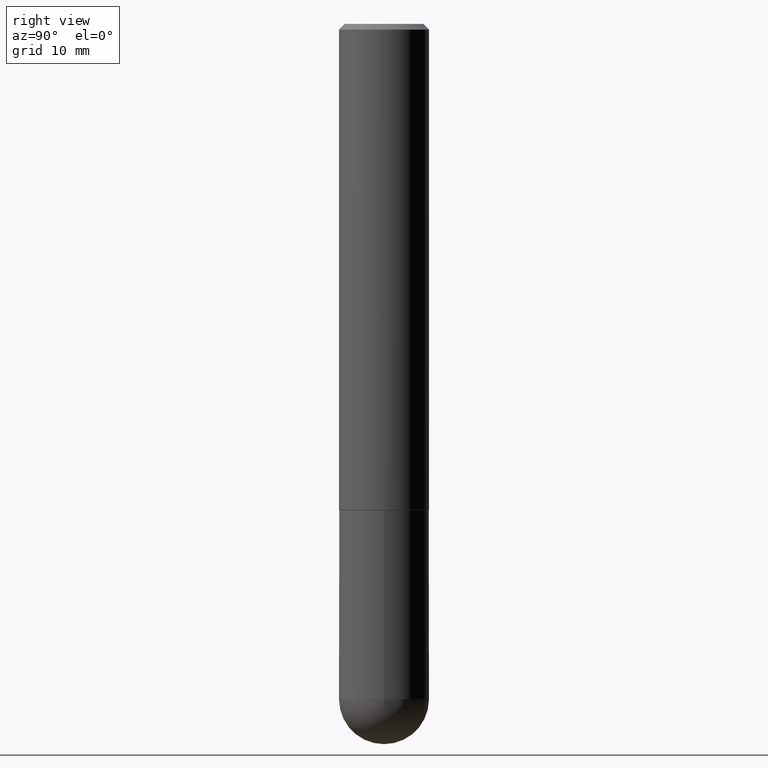
[diagram: clean part render]
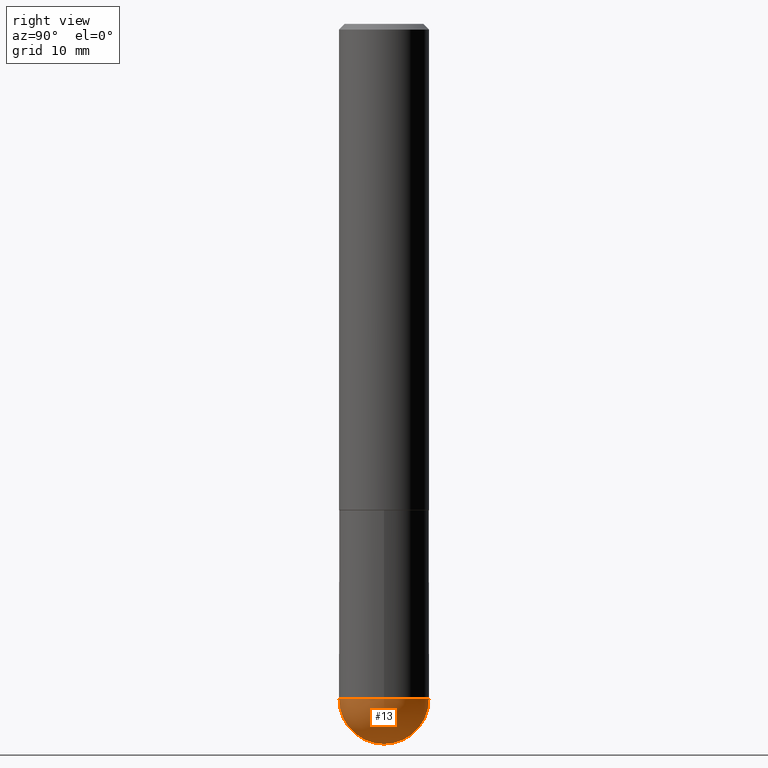
[diagram: same view with one face highlighted and labeled with its STEP entity id]
A machine part, right view. The second image highlights one B-rep face of the part: STEP entity #13.
In plain terms, the highlighted spherical surface has radius 3.9688 mm.
Its self-contained STEP definition (entity closure, byte-faithful):
#13 = ADVANCED_FACE ( 'NONE', ( #137 ), #76, .T. ) ;
#21 = DIRECTION ( 'NONE',  ( 6.982962677686265922E-15, 1.000000000000000000, 0.000000000000000000 ) ) ;
#24 = CIRCLE ( 'NONE', #179, 0.1562500000000002498 ) ;
#28 = CARTESIAN_POINT ( 'NONE',  ( 5.400447736582527652E-29, -8.657341756053672891E-15, -2.343750000000000000 ) ) ;
#31 = DIRECTION ( 'NONE',  ( 1.000000000000000000, -6.982962677686265922E-15, 4.883557194083112340E-29 ) ) ;
#38 = CIRCLE ( 'NONE', #66, 0.1562500000000002498 ) ;
#47 = ORIENTED_EDGE ( 'NONE', *, *, #202, .T. ) ;
#53 = CIRCLE ( 'NONE', #218, 0.1562500000000000000 ) ;
#66 = AXIS2_PLACEMENT_3D ( 'NONE', #28, #31, #21 ) ;
#69 = DIRECTION ( 'NONE',  ( -1.000000000000000000, 7.105427357601001070E-15, -4.926315508542082329E-29 ) ) ;
#73 = DIRECTION ( 'NONE',  ( -1.000000000000000000, 6.982962677686265922E-15, -4.883557194083112340E-29 ) ) ;
#74 = VERTEX_POINT ( 'NONE', #146 ) ;
#76 = SPHERICAL_SURFACE ( 'NONE', #295, 0.1562500000000002498 ) ;
#110 = VERTEX_POINT ( 'NONE', #215 ) ;
#136 = ORIENTED_EDGE ( 'NONE', *, *, #315, .F. ) ;
#137 = FACE_OUTER_BOUND ( 'NONE', #233, .T. ) ;
#146 = CARTESIAN_POINT ( 'NONE',  ( 0.1562500000000000000, -8.129477862328905246E-15, -2.343750000000000000 ) ) ;
#167 = ORIENTED_EDGE ( 'NONE', *, *, #331, .F. ) ;
#179 = AXIS2_PLACEMENT_3D ( 'NONE', #247, #69, #190 ) ;
#190 = DIRECTION ( 'NONE',  ( -7.105427357601000281E-15, -1.000000000000000000, 0.000000000000000000 ) ) ;
#191 = DIRECTION ( 'NONE',  ( 1.000000000000000000, -6.982962677686262766E-15, 0.000000000000000000 ) ) ;
#197 = DIRECTION ( 'NONE',  ( 6.982962677686265922E-15, 1.000000000000000000, -3.496765431890251398E-15 ) ) ;
#202 = EDGE_CURVE ( 'NONE', #324, #110, #38, .T. ) ;
#215 = CARTESIAN_POINT ( 'NONE',  ( 1.091087918388535577E-15, 0.1562499999999916733, -2.343750000000000444 ) ) ;
#218 = AXIS2_PLACEMENT_3D ( 'NONE', #317, #355, #280 ) ;
#224 = ORIENTED_EDGE ( 'NONE', *, *, #294, .F. ) ;
#233 = EDGE_LOOP ( 'NONE', ( #136, #47, #167, #224 ) ) ;
#247 = CARTESIAN_POINT ( 'NONE',  ( 5.400447736582527652E-29, -8.657341756053672891E-15, -2.343750000000000000 ) ) ;
#250 = CARTESIAN_POINT ( 'NONE',  ( 5.789233224183170584E-29, -9.193318162129576161E-15, -2.500000000000000000 ) ) ;
#264 = CIRCLE ( 'NONE', #289, 0.1562500000000000000 ) ;
#280 = DIRECTION ( 'NONE',  ( 1.000000000000000000, -6.982962677686262766E-15, 0.000000000000000000 ) ) ;
#285 = CARTESIAN_POINT ( 'NONE',  ( -1.110223024625101517E-15, -0.1562500000000085487, -2.343749999999999556 ) ) ;
#288 = CARTESIAN_POINT ( 'NONE',  ( 5.400447736582527652E-29, -8.657341756053672891E-15, -2.343750000000000000 ) ) ;
#289 = AXIS2_PLACEMENT_3D ( 'NONE', #322, #325, #191 ) ;
#294 = EDGE_CURVE ( 'NONE', #337, #74, #53, .T. ) ;
#295 = AXIS2_PLACEMENT_3D ( 'NONE', #288, #73, #197 ) ;
#315 = EDGE_CURVE ( 'NONE', #324, #337, #24, .T. ) ;
#317 = CARTESIAN_POINT ( 'NONE',  ( 5.731567514496413899E-29, -8.183159387913622595E-15, -2.343750000000000000 ) ) ;
#322 = CARTESIAN_POINT ( 'NONE',  ( 5.731567514496413899E-29, -8.183159387913622595E-15, -2.343750000000000000 ) ) ;
#324 = VERTEX_POINT ( 'NONE', #250 ) ;
#325 = DIRECTION ( 'NONE',  ( -2.445468806185136597E-29, 3.491481338843145583E-15, 1.000000000000000000 ) ) ;
#331 = EDGE_CURVE ( 'NONE', #74, #110, #264, .T. ) ;
#337 = VERTEX_POINT ( 'NONE', #285 ) ;
#355 = DIRECTION ( 'NONE',  ( -2.445468806185136597E-29, 3.491481338843145583E-15, 1.000000000000000000 ) ) ;